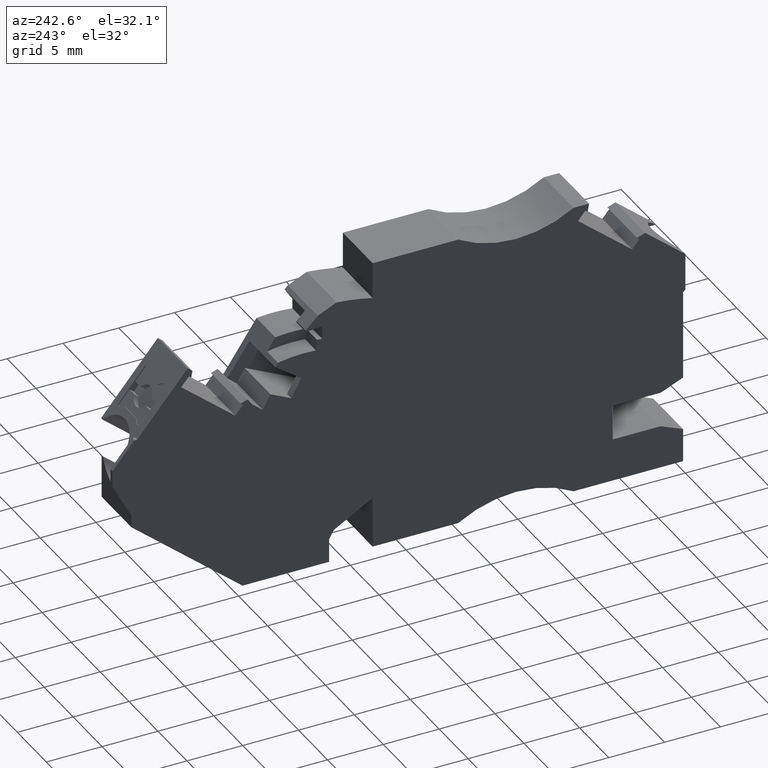
[diagram: clean part render]
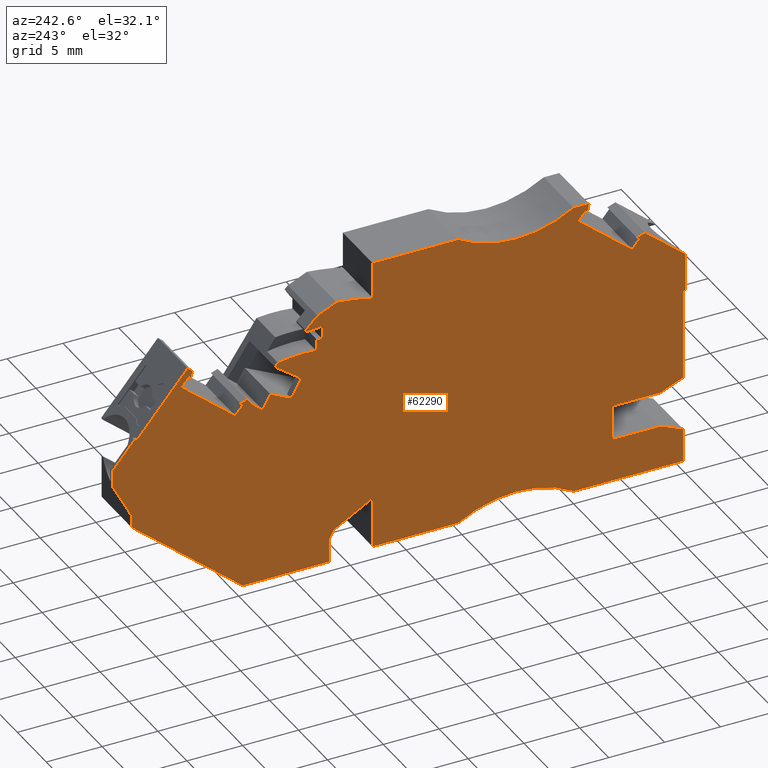
[diagram: same view with one face highlighted and labeled with its STEP entity id]
A machine part, auxiliary view. The second image highlights one B-rep face of the part: STEP entity #62290.
In plain terms, the highlighted planar face has unit normal (-1, 0, 0).
Its self-contained STEP definition (entity closure, byte-faithful):
#100=CARTESIAN_POINT('',(464.708718145229,691.661067865318,
96.5199999881399));
#110=VERTEX_POINT('',#100);
#160=CARTESIAN_POINT('',(437.811569826834,669.091680611784,
96.519999990347));
#170=DIRECTION('',(0.766044442840625,0.642787610018267,
-6.28592160352526E-11));
#180=VECTOR('',#170,1.);
#190=LINE('',#160,#180);
#200=CARTESIAN_POINT('',(464.500118405927,691.486031896868,
96.5199999881571));
#210=VERTEX_POINT('',#200);
#220=EDGE_CURVE('',#210,#110,#190,.T.);
#590=CARTESIAN_POINT('',(456.980131563566,690.283968502944,
96.5199999884406));
#600=VERTEX_POINT('',#590);
#630=CARTESIAN_POINT('',(433.600159438566,673.303090856892,
96.519999993616));
#640=DIRECTION('',(0.809110233959888,0.587656897603845,
-1.79108807478176E-10));
#650=VECTOR('',#640,1.);
#660=LINE('',#630,#650);
#670=CARTESIAN_POINT('',(456.576040116471,689.990476817657,
96.5199999885301));
#680=VERTEX_POINT('',#670);
#690=EDGE_CURVE('',#680,#600,#660,.T.);
#710=CARTESIAN_POINT('',(433.600159515618,673.303090912855,
96.5199999930493));
#720=DIRECTION('',(0.809110233959888,0.587656897603845,
-9.41635677884436E-11));
#730=VECTOR('',#720,1.);
#740=LINE('',#710,#730);
#750=CARTESIAN_POINT('',(454.637871997015,688.582784989882,
96.519999990601));
#760=VERTEX_POINT('',#750);
#770=EDGE_CURVE('',#760,#680,#740,.T.);
#1300=CARTESIAN_POINT('',(452.153158672062,672.755886873426,
96.519999989045));
#1310=VERTEX_POINT('',#1300);
#1620=CARTESIAN_POINT('',(452.153158672062,670.634347841852,
96.5199999859779));
#1630=VERTEX_POINT('',#1620);
#1660=CARTESIAN_POINT('',(452.153158672062,654.750091801107,
96.5199999811447));
#1670=DIRECTION('',(-4.88498113641264E-15,1.,3.04276823140312E-10));
#1680=VECTOR('',#1670,1.);
#1690=LINE('',#1660,#1680);
#1700=EDGE_CURVE('',#1630,#1310,#1690,.T.);
#2310=CARTESIAN_POINT('',(423.850874838744,693.337380606114,
96.5200000024344));
#2320=VERTEX_POINT('',#2310);
#2690=CARTESIAN_POINT('',(420.25315868313,690.318538307527,
96.5199999974546));
#2700=VERTEX_POINT('',#2690);
#2730=CARTESIAN_POINT('',(418.258461583172,688.644788717503,
96.5199999978888));
#2740=DIRECTION('',(0.766044443896715,0.642787608759669,
-1.66715625097262E-10));
#2750=VECTOR('',#2740,1.);
#2760=LINE('',#2730,#2750);
#2770=CARTESIAN_POINT('',(420.453158673943,690.486358232389,
96.5200000027132));
#2780=VERTEX_POINT('',#2770);
#2790=EDGE_CURVE('',#2700,#2780,#2760,.T.);
#2810=CARTESIAN_POINT('',(418.258461632564,688.644788758948,
96.5200000028933));
#2820=DIRECTION('',(0.766044443896715,0.642787608759669,
-6.28592100503245E-11));
#2830=VECTOR('',#2820,1.);
#2840=LINE('',#2810,#2830);
#2850=EDGE_CURVE('',#2780,#2320,#2840,.T.);
#4590=CARTESIAN_POINT('',(434.586036232092,672.651481369293,
96.5199999933526));
#4600=DIRECTION('',(0.707106780636725,-0.70710678173637,
-1.96930270198942E-10));
#4610=VECTOR('',#4600,1.);
#4620=LINE('',#4590,#4610);
#4630=CARTESIAN_POINT('',(420.253158680537,686.984358943138,
96.5199999973444));
#4640=VERTEX_POINT('',#4630);
#4650=CARTESIAN_POINT('',(420.453158671713,686.784358951651,
96.5200000015868));
#4660=VERTEX_POINT('',#4650);
#4670=EDGE_CURVE('',#4640,#4660,#4620,.T.);
#11930=CARTESIAN_POINT('',(420.453158662165,670.934347841852,
96.519999996764));
#11940=VERTEX_POINT('',#11930);
#12110=CARTESIAN_POINT('',(430.260883689092,670.934347841836,
96.5199999934551));
#12120=VERTEX_POINT('',#12110);
#12150=CARTESIAN_POINT('',(432.868902399149,670.934347841852,
96.5199999925753));
#12160=DIRECTION('',(-1.,-2.05391245800423E-15,3.37375427205549E-10));
#12170=VECTOR('',#12160,1.);
#12180=LINE('',#12150,#12170);
#12190=EDGE_CURVE('',#12120,#11940,#12180,.T.);
#12870=CARTESIAN_POINT('',(460.551269786978,686.775768678116,
96.5199999880561));
#12880=VERTEX_POINT('',#12870);
#12930=CARTESIAN_POINT('',(438.571064188992,668.332186251456,
96.5199999898597));
#12940=DIRECTION('',(-0.766044442841149,-0.642787610017643,
6.2859209096832E-11));
#12950=VECTOR('',#12940,1.);
#12960=LINE('',#12930,#12950);
#12970=CARTESIAN_POINT('',(465.396500890797,690.841400313869,
96.5199999876585));
#12980=VERTEX_POINT('',#12970);
#12990=EDGE_CURVE('',#12980,#12880,#12960,.T.);
#14620=CARTESIAN_POINT('',(448.25315866314,675.507552928417,
96.5199999900931));
#14630=VERTEX_POINT('',#14620);
#14660=CARTESIAN_POINT('',(448.25315866314,658.650091800634,
96.5199999836472));
#14670=DIRECTION('',(4.1633361704063E-15,-1.,-3.04276795384736E-10));
#14680=VECTOR('',#14670,1.);
#14690=LINE('',#14660,#14680);
#14700=CARTESIAN_POINT('',(448.25315866314,670.934347841852,
96.519999987385));
#14710=VERTEX_POINT('',#14700);
#14720=EDGE_CURVE('',#14630,#14710,#14690,.T.);
#21950=CARTESIAN_POINT('',(462.839338311872,700.904783826778,
96.5199999915833));
#21960=DIRECTION('',(0.173648178094106,-0.984807752936885,
-3.58238800264499E-10));
#21970=VECTOR('',#21960,1.);
#21980=LINE('',#21950,#21970);
#21990=CARTESIAN_POINT('',(464.393847229669,692.088725664276,
96.5199999860105));
#22000=VERTEX_POINT('',#21990);
#22010=EDGE_CURVE('',#22000,#210,#21980,.T.);
#22370=CARTESIAN_POINT('',(430.260883676774,697.534347842206,
96.5199999959448));
#22380=VERTEX_POINT('',#22370);
#22550=CARTESIAN_POINT('',(428.871136526959,697.534347841982,
96.5199999955787));
#22560=VERTEX_POINT('',#22550);
#22590=CARTESIAN_POINT('',(459.468902335196,697.534347841982,
96.5199999916948));
#22600=DIRECTION('',(1.,4.16333620479202E-15,-3.37375427205548E-10));
#22610=VECTOR('',#22600,1.);
#22620=LINE('',#22590,#22610);
#22630=EDGE_CURVE('',#22560,#22380,#22620,.T.);
#23160=CARTESIAN_POINT('',(471.553158676461,683.290551295097,
96.5199999846329));
#23170=VERTEX_POINT('',#23160);
#23200=CARTESIAN_POINT('',(454.941510697382,651.961739590818,
96.5199999876726));
#23210=DIRECTION('',(0.468456059117827,0.883486797114589,
-8.57196704310154E-11));
#23220=VECTOR('',#23210,1.);
#23230=LINE('',#23200,#23220);
#23240=CARTESIAN_POINT('',(469.853158672612,680.084428694561,
96.5199999849439));
#23250=VERTEX_POINT('',#23240);
#23260=EDGE_CURVE('',#23250,#23170,#23230,.T.);
#24640=CARTESIAN_POINT('',(440.590572383383,670.934347842087,
96.5199999918767));
#24650=VERTEX_POINT('',#24640);
#24750=CARTESIAN_POINT('',(432.868902399149,670.934347841852,
96.5199999925753));
#24760=DIRECTION('',(-1.,-2.05391245800423E-15,3.37375427205549E-10));
#24770=VECTOR('',#24760,1.);
#24780=LINE('',#24750,#24770);
#24790=EDGE_CURVE('',#14710,#24650,#24780,.T.);
#24960=CARTESIAN_POINT('',(437.811569826804,669.091680611814,
96.519999990347));
#24970=DIRECTION('',(0.766044442841483,0.642787610017245,
-6.28592090971333E-11));
#24980=VECTOR('',#24970,1.);
#24990=LINE('',#24960,#24980);
#25000=CARTESIAN_POINT('',(459.863487044259,687.595436231956,
96.5199999885375));
#25010=VERTEX_POINT('',#25000);
#25020=CARTESIAN_POINT('',(460.072086790979,687.770472194456,
96.5199999885204));
#25030=VERTEX_POINT('',#25020);
#25040=EDGE_CURVE('',#25010,#25030,#24990,.T.);
#28140=CARTESIAN_POINT('',(456.739733678861,690.640373023828,
96.5199999907063));
#28150=VERTEX_POINT('',#28140);
#28310=CARTESIAN_POINT('',(453.329254253565,690.81481523449,
96.5199999913264));
#28320=VERTEX_POINT('',#28310);
#28350=CARTESIAN_POINT('',(454.407109734486,678.461749721741,
96.5199999886807));
#28360=DIRECTION('',(-1.71632724493242E-10,1.99198378522582E-10,-1.));
#28370=DIRECTION('',(-0.990268068717905,0.139173101128454,
1.97685174823202E-10));
#28380=AXIS2_PLACEMENT_3D('',#28350,#28360,#28370);
#28390=CIRCLE('',#28380,12.4);
#28400=EDGE_CURVE('',#28320,#28150,#28390,.T.);
#28940=CARTESIAN_POINT('',(422.453158690795,674.78419545286,
96.5199999972607));
#28950=VERTEX_POINT('',#28940);
#29000=CARTESIAN_POINT('',(436.718750007048,674.784195459027,
96.5199999924478));
#29010=DIRECTION('',(-1.,-4.32237745595505E-10,3.37375454693983E-10));
#29020=VECTOR('',#29010,1.);
#29030=LINE('',#29000,#29020);
#29040=CARTESIAN_POINT('',(426.75315869091,674.784195454719,
96.51999999581));
#29050=VERTEX_POINT('',#29040);
#29060=EDGE_CURVE('',#29050,#28950,#29030,.T.);
#30370=CARTESIAN_POINT('',(455.535616853256,686.963210396479,
96.5199999898053));
#30380=VERTEX_POINT('',#30370);
#30410=CARTESIAN_POINT('',(431.609558430744,675.293691992933,
96.5199999943266));
#30420=DIRECTION('',(-0.898794046373811,-0.438371146636036,
1.6984482745202E-10));
#30430=VECTOR('',#30420,1.);
#30440=LINE('',#30410,#30430);
#30450=CARTESIAN_POINT('',(457.40514697999,687.875041164199,
96.519999989452));
#30460=VERTEX_POINT('',#30450);
#30470=EDGE_CURVE('',#30460,#30380,#30440,.T.);
#30830=CARTESIAN_POINT('',(469.853158672612,678.981363096974,
96.5199999849074));
#30840=VERTEX_POINT('',#30830);
#31140=CARTESIAN_POINT('',(469.853158672612,637.050091843199,
96.5199999697875));
#31150=DIRECTION('',(8.4932059664444E-15,-1.,-3.04276823140312E-10));
#31160=VECTOR('',#31150,1.);
#31170=LINE('',#31140,#31160);
#31180=EDGE_CURVE('',#23250,#30840,#31170,.T.);
#31680=CARTESIAN_POINT('',(426.753158689531,677.934195454858,
96.5199999967684));
#31690=VERTEX_POINT('',#31680);
#31740=CARTESIAN_POINT('',(426.753158688561,680.150091723416,
96.5199999974427));
#31750=DIRECTION('',(4.3776104963183E-10,-1.,-3.04276823213304E-10));
#31760=VECTOR('',#31750,1.);
#31770=LINE('',#31740,#31760);
#31780=EDGE_CURVE('',#31690,#29050,#31770,.T.);
#33250=CARTESIAN_POINT('',(469.601286620987,687.059353640858,
96.5199999852367));
#33260=VERTEX_POINT('',#33250);
#33290=CARTESIAN_POINT('',(460.199053546937,698.264498675428,
96.5199999879148));
#33300=DIRECTION('',(-0.642787610017643,0.766044442841149,
1.83096789990525E-10));
#33310=VECTOR('',#33300,1.);
#33320=LINE('',#33290,#33310);
#33330=CARTESIAN_POINT('',(471.553158676706,684.733203108212,
96.5199999846806));
#33340=VERTEX_POINT('',#33330);
#33350=EDGE_CURVE('',#33340,#33260,#33320,.T.);
#34040=CARTESIAN_POINT('',(459.905573251001,670.634347841852,
96.5199999870724));
#34050=VERTEX_POINT('',#34040);
#34080=CARTESIAN_POINT('',(432.568902399871,670.634347841852,
96.5199999925852));
#34090=DIRECTION('',(-1.,-2.05391245800423E-15,3.37375427205549E-10));
#34100=VECTOR('',#34090,1.);
#34110=LINE('',#34080,#34100);
#34120=EDGE_CURVE('',#34050,#1630,#34110,.T.);
#35200=CARTESIAN_POINT('',(429.002457562533,696.789589242285,
96.5200000017469));
#35210=VERTEX_POINT('',#35200);
#35240=CARTESIAN_POINT('',(433.457626314706,671.523071758827,
96.5199999925558));
#35250=DIRECTION('',(0.173648178093944,-0.984807752936914,
-3.58238800264489E-10));
#35260=VECTOR('',#35250,1.);
#35270=LINE('',#35240,#35260);
#35280=EDGE_CURVE('',#22560,#35210,#35270,.T.);
#37220=CARTESIAN_POINT('',(420.253158680277,686.650091619719,
96.5199999973333));
#37230=DIRECTION('',(7.77721387290616E-10,1.,3.30975336092639E-11));
#37240=VECTOR('',#37230,1.);
#37250=LINE('',#37220,#37240);
#37260=EDGE_CURVE('',#4640,#2700,#37250,.T.);
#37510=CARTESIAN_POINT('',(418.731781581536,688.171468811116,
96.5200000025896));
#37520=DIRECTION('',(0.766044442841588,0.642787610017119,
-6.28592160361227E-11));
#37530=VECTOR('',#37520,1.);
#37540=LINE('',#37510,#37530);
#37550=CARTESIAN_POINT('',(424.365826200865,692.898993577375,
96.5200000021273));
#37560=VERTEX_POINT('',#37550);
#37570=CARTESIAN_POINT('',(424.574425947584,693.074029539874,
96.5200000021102));
#37580=VERTEX_POINT('',#37570);
#37590=EDGE_CURVE('',#37560,#37580,#37540,.T.);
#38290=CARTESIAN_POINT('',(448.253158676843,694.268032602323,
96.5199999907142));
#38300=VERTEX_POINT('',#38290);
#38330=CARTESIAN_POINT('',(453.027343017126,674.889236154287,
96.5199999881369));
#38340=DIRECTION('',(-2.61479598074368E-10,4.91719762515277E-11,-1.));
#38350=DIRECTION('',(0.707106781186552,-0.707106781186543,
-2.19663834792119E-10));
#38360=AXIS2_PLACEMENT_3D('',#38330,#38340,#38350);
#38370=CIRCLE('',#38360,19.9582210602397);
#38380=CARTESIAN_POINT('',(451.482223051962,694.78755749511,
96.5199999899389));
#38390=VERTEX_POINT('',#38380);
#38400=EDGE_CURVE('',#38300,#38390,#38370,.T.);
#39300=CARTESIAN_POINT('',(446.887345512817,684.952790989293,
96.5199999921113));
#39310=DIRECTION('',(-0.939692620931275,0.342020142926277,
4.21098064876166E-10));
#39320=VECTOR('',#39310,1.);
#39330=LINE('',#39300,#39320);
#39340=EDGE_CURVE('',#37580,#2320,#39330,.T.);
#42940=CARTESIAN_POINT('',(448.253158676843,697.534347842047,
96.5199999954787));
#42950=VERTEX_POINT('',#42940);
#42980=CARTESIAN_POINT('',(448.253158676843,658.650091619474,
96.5199999885867));
#42990=DIRECTION('',(4.05231401190294E-15,-1.,-4.9171971582647E-11));
#43000=VECTOR('',#42990,1.);
#43010=LINE('',#42980,#43000);
#43020=EDGE_CURVE('',#42950,#38300,#43010,.T.);
#47390=CARTESIAN_POINT('',(469.31952021349,687.084005007153,
96.5199999844764));
#47400=VERTEX_POINT('',#47390);
#47580=CARTESIAN_POINT('',(464.820006934449,692.446316115817,
96.5199999883413));
#47590=VERTEX_POINT('',#47580);
#47620=CARTESIAN_POINT('',(460.057091810664,698.122537318867,
96.5199999916754));
#47630=DIRECTION('',(0.642787610147905,-0.766044442731846,
-4.49950343930417E-10));
#47640=VECTOR('',#47630,1.);
#47650=LINE('',#47620,#47640);
#47660=EDGE_CURVE('',#47590,#47400,#47650,.T.);
#48600=CARTESIAN_POINT('',(435.42572800424,662.37138208604,
96.5199999891071));
#48610=DIRECTION('',(3.32877201508128E-10,-1.27710996347907E-10,1.));
#48620=DIRECTION('',(1.,3.99680275293531E-15,-3.32877201508128E-10));
#48630=AXIS2_PLACEMENT_3D('',#48600,#48610,#48620);
#48640=CIRCLE('',#48630,10.);
#48650=EDGE_CURVE('',#24650,#12120,#48640,.T.);
#48890=CARTESIAN_POINT('',(429.211057301835,696.964625210736,
96.5200000017297));
#48900=VERTEX_POINT('',#48890);
#48930=CARTESIAN_POINT('',(418.731781581546,688.171468811106,
96.5200000025896));
#48940=DIRECTION('',(0.766044442840731,0.642787610018141,
-6.28592090964542E-11));
#48950=VECTOR('',#48940,1.);
#48960=LINE('',#48930,#48950);
#48970=EDGE_CURVE('',#35210,#48900,#48960,.T.);
#51440=CARTESIAN_POINT('',(420.453158663975,673.938901656009,
96.5199999968635));
#51450=VERTEX_POINT('',#51440);
#51480=CARTESIAN_POINT('',(429.247463244381,677.655787173606,
96.5199999958422));
#51490=DIRECTION('',(-0.921109329852951,-0.389303997485059,
1.9230346739647E-10));
#51500=VECTOR('',#51490,1.);
#51510=LINE('',#51480,#51500);
#51520=EDGE_CURVE('',#28950,#51450,#51510,.T.);
#51770=CARTESIAN_POINT('',(440.59057242727,697.534347842052,
96.5199999904505));
#51780=VERTEX_POINT('',#51770);
#51810=CARTESIAN_POINT('',(459.46890233526,697.534347842047,
96.5199999916948));
#51820=DIRECTION('',(1.,4.16333620479202E-15,-3.37375427205548E-10));
#51830=VECTOR('',#51820,1.);
#51840=LINE('',#51810,#51830);
#51850=EDGE_CURVE('',#51780,#42950,#51840,.T.);
#55530=CARTESIAN_POINT('',(458.103686239498,686.614842978161,
96.5199999888329));
#55540=VERTEX_POINT('',#55530);
#55570=CARTESIAN_POINT('',(437.54184275724,669.361407680729,
96.5199999905201));
#55580=DIRECTION('',(-0.766044442841149,-0.642787610017643,
6.28592090968317E-11));
#55590=VECTOR('',#55580,1.);
#55600=LINE('',#55570,#55590);
#55610=CARTESIAN_POINT('',(459.023208708456,687.386413944025,
96.5199999887574));
#55620=VERTEX_POINT('',#55610);
#55630=EDGE_CURVE('',#55620,#55540,#55600,.T.);
#55910=CARTESIAN_POINT('',(452.770448878425,692.923307372703,
96.5199999895609));
#55920=VERTEX_POINT('',#55910);
#55950=CARTESIAN_POINT('',(452.77044887916,690.835894010177,
96.519999989492));
#55960=DIRECTION('',(-4.40869230011723E-10,1.,3.30975336099514E-11));
#55970=VECTOR('',#55960,1.);
#55980=LINE('',#55950,#55970);
#55990=CARTESIAN_POINT('',(452.770448885207,691.742490592761,
96.5199999909231));
#56000=VERTEX_POINT('',#55990);
#56010=EDGE_CURVE('',#56000,#55920,#55980,.T.);
#57380=CARTESIAN_POINT('',(450.651775870862,688.7172210026,
96.5199999899418));
#57390=DIRECTION('',(-0.99619469812943,0.0871557423169239,
2.47354783948658E-10));
#57400=VECTOR('',#57390,1.);
#57410=LINE('',#57380,#57400);
#57420=EDGE_CURVE('',#33260,#47400,#57410,.T.);
#57630=CARTESIAN_POINT('',(455.148770778466,693.214216274845,
96.5199999918378));
#57640=DIRECTION('',(-0.642787610017623,0.766044442841166,
4.49950343976258E-10));
#57650=VECTOR('',#57640,1.);
#57660=LINE('',#57630,#57650);
#57670=EDGE_CURVE('',#12880,#25010,#57660,.T.);
#58330=CARTESIAN_POINT('',(420.453158666891,678.779489245897,
96.5199999991511));
#58340=VERTEX_POINT('',#58330);
#58370=CARTESIAN_POINT('',(420.453158671512,686.450091725288,
96.5200000014851));
#58380=DIRECTION('',(-6.02397798310678E-10,-1.,-3.04276823039866E-10));
#58390=VECTOR('',#58380,1.);
#58400=LINE('',#58370,#58390);
#58410=EDGE_CURVE('',#4660,#58340,#58400,.T.);
#60200=CARTESIAN_POINT('',(464.048630851758,675.753460625056,
96.5199999852975));
#60210=DIRECTION('',(-2.61479598074368E-10,4.91719762515277E-11,-1.));
#60220=DIRECTION('',(-1.,1.41137712628243E-10,2.61479598081308E-10));
#60230=AXIS2_PLACEMENT_3D('',#60200,#60210,#60220);
#60240=PLANE('',#60230);
#60250=ORIENTED_EDGE('',*,*,#43020,.T.);
#60260=ORIENTED_EDGE('',*,*,#51850,.T.);
#60270=CARTESIAN_POINT('',(435.425728052281,706.097313600446,
96.5200000024119));
#60280=DIRECTION('',(5.3188844066923E-10,-1.23311822582352E-10,1.));
#60290=DIRECTION('',(-0.386155667699773,-0.92243362921315,
9.16447639188909E-11));
#60300=AXIS2_PLACEMENT_3D('',#60270,#60280,#60290);
#60310=CIRCLE('',#60300,10.);
#60320=EDGE_CURVE('',#22380,#51780,#60310,.T.);
#60330=ORIENTED_EDGE('',*,*,#60320,.T.);
#60340=ORIENTED_EDGE('',*,*,#22630,.T.);
#60350=ORIENTED_EDGE('',*,*,#35280,.F.);
#60360=ORIENTED_EDGE('',*,*,#48970,.F.);
#60370=CARTESIAN_POINT('',(442.756431451952,680.821876918476,
96.519999992248));
#60380=DIRECTION('',(0.642787610017763,-0.766044442841048,
-4.49950337037315E-10));
#60390=VECTOR('',#60380,1.);
#60400=LINE('',#60370,#60390);
#60410=CARTESIAN_POINT('',(429.862127205883,696.188710314238,
96.520000001274));
#60420=VERTEX_POINT('',#60410);
#60430=EDGE_CURVE('',#48900,#60420,#60400,.T.);
#60440=ORIENTED_EDGE('',*,*,#60430,.F.);
#60450=CARTESIAN_POINT('',(419.450735239081,687.452515155303,
96.5200000021283));
#60460=DIRECTION('',(-0.766044442841233,-0.642787610017543,
6.28592090969076E-11));
#60470=VECTOR('',#60460,1.);
#60480=LINE('',#60450,#60470);
#60490=CARTESIAN_POINT('',(425.016896103764,692.123078688031,
96.5200000016716));
#60500=VERTEX_POINT('',#60490);
#60510=EDGE_CURVE('',#60420,#60500,#60480,.T.);
#60520=ORIENTED_EDGE('',*,*,#60510,.F.);
#60530=CARTESIAN_POINT('',(438.266897032133,676.33234248784,
96.5199999923966));
#60540=DIRECTION('',(-0.642787610017497,0.766044442841272,
4.49950337037408E-10));
#60550=VECTOR('',#60540,1.);
#60560=LINE('',#60530,#60550);
#60570=EDGE_CURVE('',#60500,#37560,#60560,.T.);
#60580=ORIENTED_EDGE('',*,*,#60570,.F.);
#60590=ORIENTED_EDGE('',*,*,#37590,.F.);
#60600=ORIENTED_EDGE('',*,*,#39340,.F.);
#60610=ORIENTED_EDGE('',*,*,#2850,.T.);
#60620=ORIENTED_EDGE('',*,*,#2790,.T.);
#60630=ORIENTED_EDGE('',*,*,#37260,.T.);
#60640=ORIENTED_EDGE('',*,*,#4670,.F.);
#60650=ORIENTED_EDGE('',*,*,#58410,.F.);
#60660=CARTESIAN_POINT('',(434.694841005031,672.760286452133,
96.5199999925148));
#60670=DIRECTION('',(0.921109330193795,-0.389303996678608,
-4.29215884116574E-10));
#60680=VECTOR('',#60670,1.);
#60690=LINE('',#60660,#60680);
#60700=CARTESIAN_POINT('',(422.453158688321,677.934195450495,
96.5199999982192));
#60710=VERTEX_POINT('',#60700);
#60720=EDGE_CURVE('',#58340,#60710,#60690,.T.);
#60730=ORIENTED_EDGE('',*,*,#60720,.F.);
#60740=CARTESIAN_POINT('',(439.868750001112,677.934195460679,
96.5199999923436));
#60750=DIRECTION('',(1.,4.43801606575396E-10,-3.37375454686836E-10));
#60760=VECTOR('',#60750,1.);
#60770=LINE('',#60740,#60760);
#60780=EDGE_CURVE('',#60710,#31690,#60770,.T.);
#60790=ORIENTED_EDGE('',*,*,#60780,.F.);
#60800=ORIENTED_EDGE('',*,*,#31780,.F.);
#60810=ORIENTED_EDGE('',*,*,#29060,.F.);
#60820=ORIENTED_EDGE('',*,*,#51520,.F.);
#60830=EDGE_CURVE('',#51450,#11940,#58400,.T.);
#60840=ORIENTED_EDGE('',*,*,#60830,.F.);
#60850=ORIENTED_EDGE('',*,*,#12190,.T.);
#60860=ORIENTED_EDGE('',*,*,#48650,.T.);
#60870=ORIENTED_EDGE('',*,*,#24790,.T.);
#60880=ORIENTED_EDGE('',*,*,#14720,.T.);
#60890=CARTESIAN_POINT('',(441.399226845236,679.46467230849,
96.5199999922929));
#60900=DIRECTION('',(-0.866025403784442,0.499999999999994,
4.44314163120431E-10));
#60910=VECTOR('',#60900,1.);
#60920=LINE('',#60890,#60910);
#60930=CARTESIAN_POINT('',(451.72014597017,673.505886873426,
96.5199999891761));
#60940=VERTEX_POINT('',#60930);
#60950=EDGE_CURVE('',#60940,#14630,#60920,.T.);
#60960=ORIENTED_EDGE('',*,*,#60950,.T.);
#60970=CARTESIAN_POINT('',(445.761360531259,683.826806005022,
96.5199999921485));
#60980=DIRECTION('',(-0.500000000000001,0.866025403784438,
4.32199238343385E-10));
#60990=VECTOR('',#60980,1.);
#61000=LINE('',#60970,#60990);
#61010=EDGE_CURVE('',#1310,#60940,#61000,.T.);
#61020=ORIENTED_EDGE('',*,*,#61010,.T.);
#61030=ORIENTED_EDGE('',*,*,#1700,.T.);
#61040=ORIENTED_EDGE('',*,*,#34120,.T.);
#61050=CARTESIAN_POINT('',(447.053267570832,659.849982890051,
96.5199999844171));
#61060=DIRECTION('',(0.766044443242429,0.642787609539416,
-6.28592094593083E-11));
#61070=VECTOR('',#61060,1.);
#61080=LINE('',#61050,#61070);
#61090=EDGE_CURVE('',#34050,#30840,#61080,.T.);
#61100=ORIENTED_EDGE('',*,*,#61090,.F.);
#61110=ORIENTED_EDGE('',*,*,#31180,.T.);
#61120=ORIENTED_EDGE('',*,*,#23260,.F.);
#61130=CARTESIAN_POINT('',(471.553158668309,635.350091614242,
96.5199999830461));
#61140=DIRECTION('',(1.70041258851247E-10,1.,3.30975613651824E-11));
#61150=VECTOR('',#61140,1.);
#61160=LINE('',#61130,#61150);
#61170=EDGE_CURVE('',#23170,#33340,#61160,.T.);
#61180=ORIENTED_EDGE('',*,*,#61170,.F.);
#61190=ORIENTED_EDGE('',*,*,#33350,.F.);
#61200=ORIENTED_EDGE('',*,*,#57420,.F.);
#61210=ORIENTED_EDGE('',*,*,#47660,.T.);
#61220=CARTESIAN_POINT('',(437.435371686486,669.467878751227,
96.5199999905884));
#61230=DIRECTION('',(-0.766044442731926,-0.64278761014781,
6.28592089981705E-11));
#61240=VECTOR('',#61230,1.);
#61250=LINE('',#61220,#61240);
#61260=EDGE_CURVE('',#47590,#22000,#61250,.T.);
#61270=ORIENTED_EDGE('',*,*,#61260,.F.);
#61280=ORIENTED_EDGE('',*,*,#22010,.F.);
#61290=ORIENTED_EDGE('',*,*,#220,.F.);
#61300=CARTESIAN_POINT('',(459.638305198279,697.703750705474,
96.5199999916892));
#61310=DIRECTION('',(0.642787610017889,-0.766044442840943,
-4.49950337037271E-10));
#61320=VECTOR('',#61310,1.);
#61330=LINE('',#61300,#61320);
#61340=EDGE_CURVE('',#110,#12980,#61330,.T.);
#61350=ORIENTED_EDGE('',*,*,#61340,.F.);
#61360=ORIENTED_EDGE('',*,*,#12990,.F.);
#61370=ORIENTED_EDGE('',*,*,#57670,.F.);
#61380=ORIENTED_EDGE('',*,*,#25040,.F.);
#61390=CARTESIAN_POINT('',(452.471436989637,690.536882479566,
96.5199999919264));
#61400=DIRECTION('',(-0.939692620931331,0.342020142926123,
4.21098037120504E-10));
#61410=VECTOR('',#61400,1.);
#61420=LINE('',#61390,#61410);
#61430=CARTESIAN_POINT('',(459.49700308653,687.97978554481,
96.5199999877467));
#61440=VERTEX_POINT('',#61430);
#61450=EDGE_CURVE('',#25030,#61440,#61420,.T.);
#61460=ORIENTED_EDGE('',*,*,#61450,.F.);
#61470=CARTESIAN_POINT('',(459.355627776957,687.861157574545,
96.5199999887897));
#61480=VERTEX_POINT('',#61470);
#61490=EDGE_CURVE('',#61440,#61480,#61250,.T.);
#61500=ORIENTED_EDGE('',*,*,#61490,.F.);
#61510=CARTESIAN_POINT('',(442.753042280842,664.150208169682,
96.5199999871763));
#61520=DIRECTION('',(-0.573576435996845,-0.819152044537006,
-5.57383606182621E-11));
#61530=VECTOR('',#61520,1.);
#61540=LINE('',#61510,#61530);
#61550=EDGE_CURVE('',#61480,#55620,#61540,.T.);
#61560=ORIENTED_EDGE('',*,*,#61550,.F.);
#61570=ORIENTED_EDGE('',*,*,#55630,.F.);
#61580=CARTESIAN_POINT('',(454.696365970523,692.761811465812,
96.5199999918528));
#61590=DIRECTION('',(0.48480962009738,-0.874619707221964,
-4.29689398194903E-10));
#61600=VECTOR('',#61590,1.);
#61610=LINE('',#61580,#61600);
#61620=EDGE_CURVE('',#30460,#55540,#61610,.T.);
#61630=ORIENTED_EDGE('',*,*,#61620,.T.);
#61640=ORIENTED_EDGE('',*,*,#30470,.F.);
#61650=CARTESIAN_POINT('',(453.168377588549,691.233823080157,
96.5199999919034));
#61660=DIRECTION('',(0.484809620089485,-0.87461970722634,
-4.29689409602156E-10));
#61670=VECTOR('',#61660,1.);
#61680=LINE('',#61650,#61670);
#61690=EDGE_CURVE('',#760,#30380,#61680,.T.);
#61700=ORIENTED_EDGE('',*,*,#61690,.T.);
#61710=ORIENTED_EDGE('',*,*,#770,.F.);
#61720=ORIENTED_EDGE('',*,*,#690,.F.);
#61730=CARTESIAN_POINT('',(455.062108904623,693.127554034861,
96.5199999890055));
#61740=DIRECTION('',(0.559192903329582,-0.829037572650259,
-1.64667215982994E-10));
#61750=VECTOR('',#61740,1.);
#61760=LINE('',#61730,#61750);
#61770=EDGE_CURVE('',#28150,#600,#61760,.T.);
#61780=ORIENTED_EDGE('',*,*,#61770,.T.);
#61790=ORIENTED_EDGE('',*,*,#28400,.T.);
#61800=CARTESIAN_POINT('',(453.282717511253,691.348162642096,
96.5199999893831));
#61810=DIRECTION('',(-0.0869238291065774,0.996214960705495,
5.43037304819445E-11));
#61820=VECTOR('',#61810,1.);
#61830=LINE('',#61800,#61820);
#61840=CARTESIAN_POINT('',(453.243876020867,691.793316453393,
96.5199999894073));
#61850=VERTEX_POINT('',#61840);
#61860=EDGE_CURVE('',#28320,#61850,#61830,.T.);
#61870=ORIENTED_EDGE('',*,*,#61860,.F.);
#61880=CARTESIAN_POINT('',(454.43464931395,678.47130593789,
96.5199999886743));
#61890=DIRECTION('',(3.32877193696472E-10,-1.27710826844375E-10,1.));
#61900=DIRECTION('',(1.,-1.70041369873666E-10,-3.32876926393724E-10));
#61910=AXIS2_PLACEMENT_3D('',#61880,#61890,#61900);
#61920=CIRCLE('',#61910,13.3751226241374);
#61930=EDGE_CURVE('',#61850,#56000,#61920,.T.);
#61940=ORIENTED_EDGE('',*,*,#61930,.F.);
#61950=ORIENTED_EDGE('',*,*,#56010,.F.);
#61960=CARTESIAN_POINT('',(454.705565278428,692.771010408787,
96.519999989081));
#61970=DIRECTION('',(0.996917333719787,-0.0784590958973606,
-2.47244279386421E-10));
#61980=VECTOR('',#61970,1.);
#61990=LINE('',#61960,#61980);
#62000=CARTESIAN_POINT('',(454.248066603513,692.807016333618,
96.5199999891945));
#62010=VERTEX_POINT('',#62000);
#62020=EDGE_CURVE('',#55920,#62010,#61990,.T.);
#62030=ORIENTED_EDGE('',*,*,#62020,.F.);
#62040=CARTESIAN_POINT('',(451.318602669527,655.584647619905,
96.5199999886815));
#62050=DIRECTION('',(0.0784590953062518,0.996917333766308,
1.37413377264383E-11));
#62060=VECTOR('',#62050,1.);
#62070=LINE('',#62040,#62060);
#62080=CARTESIAN_POINT('',(454.259424621681,692.951333638634,
96.5199999891965));
#62090=VERTEX_POINT('',#62080);
#62100=EDGE_CURVE('',#62010,#62090,#62070,.T.);
#62110=ORIENTED_EDGE('',*,*,#62100,.F.);
#62120=CARTESIAN_POINT('',(454.57539009794,692.640835228344,
96.5199999891087));
#62130=DIRECTION('',(-0.713250449457171,0.700909263991527,
1.98232829007228E-10));
#62140=VECTOR('',#62130,1.);
#62150=LINE('',#62120,#62140);
#62160=CARTESIAN_POINT('',(453.176670213735,694.015353429229,
96.5199999894975));
#62170=VERTEX_POINT('',#62160);
#62180=EDGE_CURVE('',#62090,#62170,#62150,.T.);
#62190=ORIENTED_EDGE('',*,*,#62180,.F.);
#62200=CARTESIAN_POINT('',(455.08172487606,693.147170006292,
96.5199999890012));
#62210=DIRECTION('',(-0.909961270806029,0.414693242810969,
2.37033388187734E-10));
#62220=VECTOR('',#62210,1.);
#62230=LINE('',#62200,#62220);
#62240=EDGE_CURVE('',#62170,#38390,#62230,.T.);
#62250=ORIENTED_EDGE('',*,*,#62240,.F.);
#62260=ORIENTED_EDGE('',*,*,#38400,.T.);
#62270=EDGE_LOOP('',(#62260,#62250,#62190,#62110,#62030,#61950,#61940,
#61870,#61790,#61780,#61720,#61710,#61700,#61640,#61630,#61570,#61560,
#61500,#61460,#61380,#61370,#61360,#61350,#61290,#61280,#61270,#61210,
#61200,#61190,#61180,#61120,#61110,#61100,#61040,#61030,#61020,#60960,
#60880,#60870,#60860,#60850,#60840,#60820,#60810,#60800,#60790,#60730,
#60650,#60640,#60630,#60620,#60610,#60600,#60590,#60580,#60520,#60440,
#60360,#60350,#60340,#60330,#60260,#60250));
#62280=FACE_OUTER_BOUND('',#62270,.T.);
#62290=ADVANCED_FACE('',(#62280),#60240,.T.);